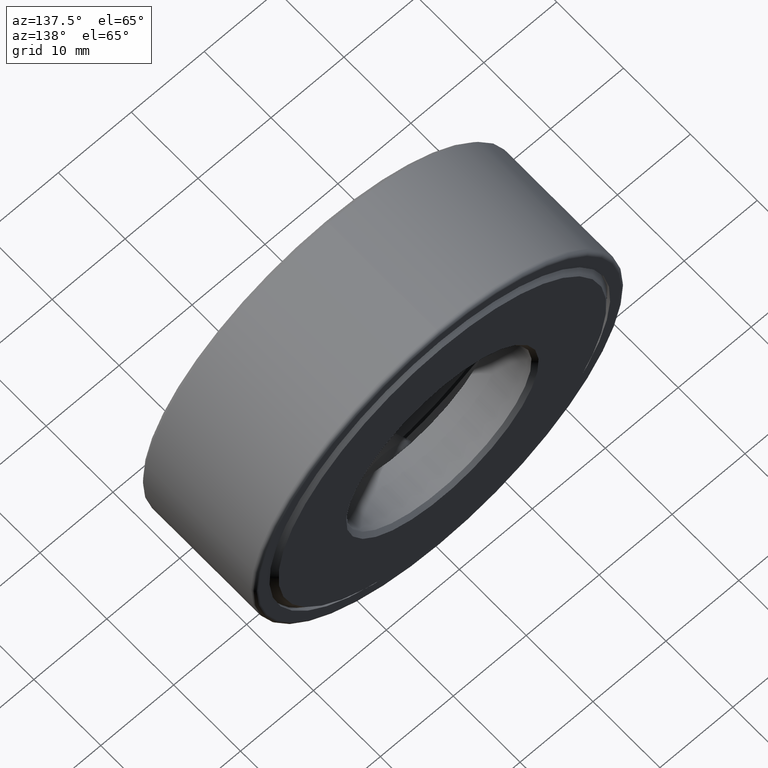
[diagram: clean part render]
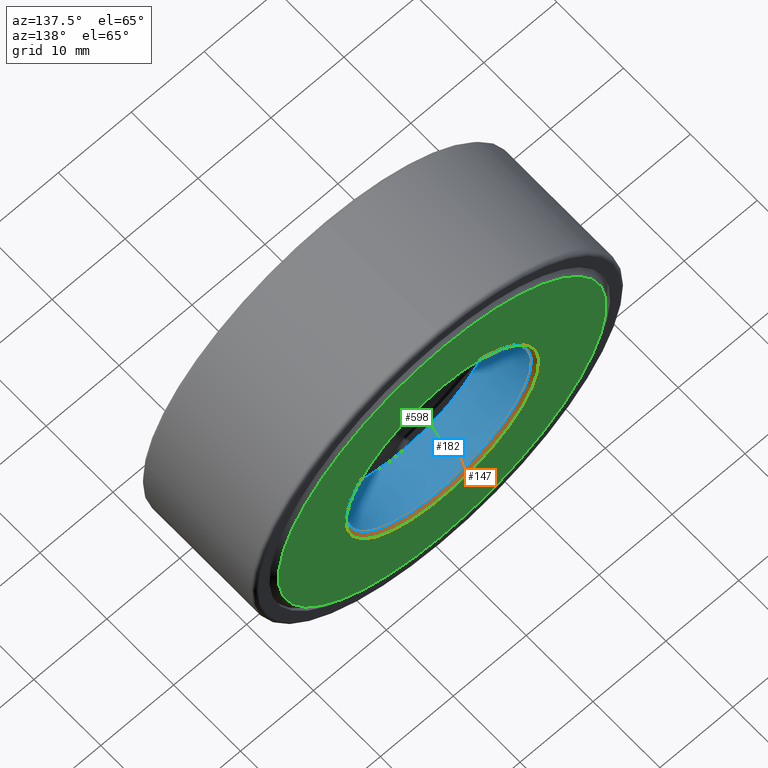
[diagram: same view with three faces highlighted in distinct colors, each labeled with its STEP entity id]
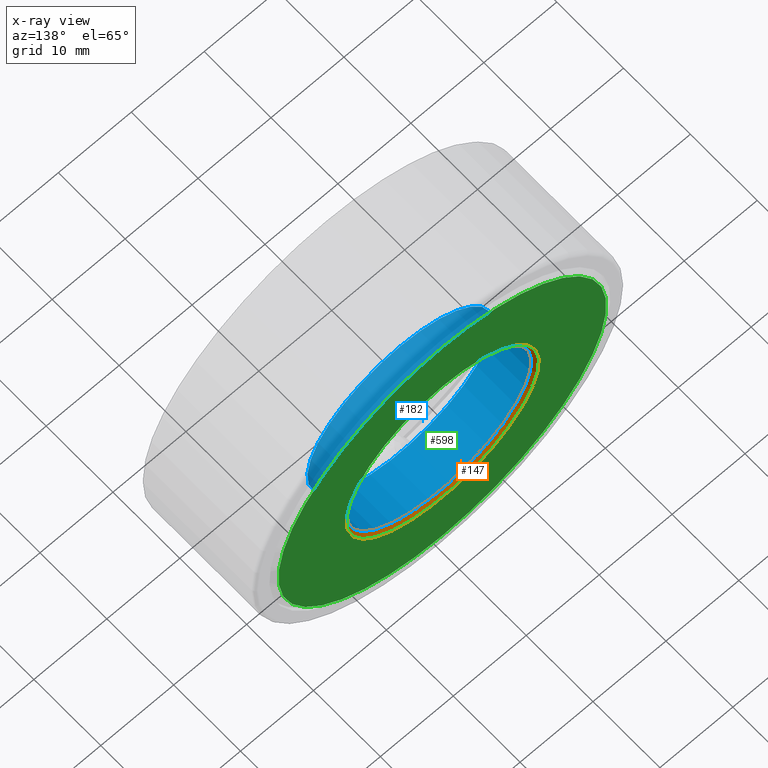
[diagram: x-ray of the same camera — body ghosted, the three highlighted faces saturated]
A machine part, auxiliary view with three faces highlighted in distinct colors.
The next image is the same camera in x-ray (body ghosted, the three faces saturated) — at least one of them is partly hidden behind the body in this view.
Their STEP definitions:

[orange] entity #147 — the highlighted conical surface has half-angle 45 deg.
#19 = DIRECTION ( 'NONE',  ( -0.0000000000000000000, 1.000000000000000000, -0.0000000000000000000 ) ) ;
#51 = VERTEX_POINT ( 'NONE', #305 ) ;
#60 = AXIS2_PLACEMENT_3D ( 'NONE', #514, #197, #295 ) ;
#81 = AXIS2_PLACEMENT_3D ( 'NONE', #462, #556, #141 ) ;
#98 = VERTEX_POINT ( 'NONE', #443 ) ;
#128 = EDGE_CURVE ( 'NONE', #98, #98, #387, .T. ) ;
#141 = DIRECTION ( 'NONE',  ( 0.0000000000000000000, 0.0000000000000000000, 1.000000000000000000 ) ) ;
#147 = ADVANCED_FACE ( 'NONE', ( #509, #592 ), #380, .F. ) ;
#196 = ORIENTED_EDGE ( 'NONE', *, *, #389, .F. ) ;
#197 = DIRECTION ( 'NONE',  ( -0.0000000000000000000, 1.000000000000000000, -0.0000000000000000000 ) ) ;
#200 = CIRCLE ( 'NONE', #419, 0.5000000000000001100 ) ;
#295 = DIRECTION ( 'NONE',  ( 0.0000000000000000000, 0.0000000000000000000, 1.000000000000000000 ) ) ;
#302 = CARTESIAN_POINT ( 'NONE',  ( 0.0000000000000000000, 0.6674999999999998700, 0.0000000000000000000 ) ) ;
#305 = CARTESIAN_POINT ( 'NONE',  ( 0.0000000000000000000, 0.6674999999999998700, 0.5000000000000001100 ) ) ;
#313 = EDGE_LOOP ( 'NONE', ( #491 ) ) ;
#349 = DIRECTION ( 'NONE',  ( 0.0000000000000000000, 0.0000000000000000000, 1.000000000000000000 ) ) ;
#380 = CONICAL_SURFACE ( 'NONE', #60, 0.5000000000000001100, 0.7853981633974466100 ) ;
#387 = CIRCLE ( 'NONE', #81, 0.5200000000000000200 ) ;
#389 = EDGE_CURVE ( 'NONE', #51, #51, #200, .T. ) ;
#419 = AXIS2_PLACEMENT_3D ( 'NONE', #302, #19, #349 ) ;
#443 = CARTESIAN_POINT ( 'NONE',  ( 0.0000000000000000000, 0.6875000000000000000, 0.5200000000000000200 ) ) ;
#461 = EDGE_LOOP ( 'NONE', ( #196 ) ) ;
#462 = CARTESIAN_POINT ( 'NONE',  ( 0.0000000000000000000, 0.6875000000000000000, 0.0000000000000000000 ) ) ;
#491 = ORIENTED_EDGE ( 'NONE', *, *, #128, .T. ) ;
#509 = FACE_OUTER_BOUND ( 'NONE', #313, .T. ) ;
#514 = CARTESIAN_POINT ( 'NONE',  ( 0.0000000000000000000, 0.6674999999999998700, 0.0000000000000000000 ) ) ;
#556 = DIRECTION ( 'NONE',  ( -0.0000000000000000000, 1.000000000000000000, -0.0000000000000000000 ) ) ;
#592 = FACE_BOUND ( 'NONE', #461, .T. ) ;

[blue] entity #182 — the highlighted cylindrical surface (bore or boss wall) has radius 12.7 mm, axis along (-0, 1, -0).
#19 = DIRECTION ( 'NONE',  ( -0.0000000000000000000, 1.000000000000000000, -0.0000000000000000000 ) ) ;
#26 = FACE_OUTER_BOUND ( 'NONE', #378, .T. ) ;
#48 = ORIENTED_EDGE ( 'NONE', *, *, #389, .T. ) ;
#51 = VERTEX_POINT ( 'NONE', #305 ) ;
#66 = EDGE_CURVE ( 'NONE', #429, #429, #516, .T. ) ;
#90 = DIRECTION ( 'NONE',  ( -0.0000000000000000000, 1.000000000000000000, -0.0000000000000000000 ) ) ;
#143 = CARTESIAN_POINT ( 'NONE',  ( 0.0000000000000000000, 0.4374999999999998900, 0.0000000000000000000 ) ) ;
#160 = AXIS2_PLACEMENT_3D ( 'NONE', #143, #90, #551 ) ;
#170 = FACE_OUTER_BOUND ( 'NONE', #390, .T. ) ;
#182 = ADVANCED_FACE ( 'NONE', ( #170, #26 ), #290, .F. ) ;
#189 = DIRECTION ( 'NONE',  ( 0.0000000000000000000, 0.0000000000000000000, 1.000000000000000000 ) ) ;
#200 = CIRCLE ( 'NONE', #419, 0.5000000000000001100 ) ;
#288 = CARTESIAN_POINT ( 'NONE',  ( 0.0000000000000000000, 0.0000000000000000000, 0.0000000000000000000 ) ) ;
#290 = CYLINDRICAL_SURFACE ( 'NONE', #294, 0.5000000000000001100 ) ;
#294 = AXIS2_PLACEMENT_3D ( 'NONE', #288, #388, #189 ) ;
#302 = CARTESIAN_POINT ( 'NONE',  ( 0.0000000000000000000, 0.6674999999999998700, 0.0000000000000000000 ) ) ;
#305 = CARTESIAN_POINT ( 'NONE',  ( 0.0000000000000000000, 0.6674999999999998700, 0.5000000000000001100 ) ) ;
#349 = DIRECTION ( 'NONE',  ( 0.0000000000000000000, 0.0000000000000000000, 1.000000000000000000 ) ) ;
#378 = EDGE_LOOP ( 'NONE', ( #597 ) ) ;
#388 = DIRECTION ( 'NONE',  ( -0.0000000000000000000, 1.000000000000000000, -0.0000000000000000000 ) ) ;
#389 = EDGE_CURVE ( 'NONE', #51, #51, #200, .T. ) ;
#390 = EDGE_LOOP ( 'NONE', ( #48 ) ) ;
#419 = AXIS2_PLACEMENT_3D ( 'NONE', #302, #19, #349 ) ;
#429 = VERTEX_POINT ( 'NONE', #492 ) ;
#492 = CARTESIAN_POINT ( 'NONE',  ( 0.0000000000000000000, 0.4374999999999998900, 0.5000000000000001100 ) ) ;
#516 = CIRCLE ( 'NONE', #160, 0.5000000000000001100 ) ;
#551 = DIRECTION ( 'NONE',  ( 0.0000000000000000000, 0.0000000000000000000, 1.000000000000000000 ) ) ;
#597 = ORIENTED_EDGE ( 'NONE', *, *, #66, .F. ) ;

[green] entity #598 — the highlighted planar face has unit normal (-0, 1, 0).
#4 = FACE_BOUND ( 'NONE', #498, .T. ) ;
#21 = EDGE_LOOP ( 'NONE', ( #506 ) ) ;
#23 = CARTESIAN_POINT ( 'NONE',  ( 0.0000000000000000000, 0.6875000000000000000, 0.0000000000000000000 ) ) ;
#81 = AXIS2_PLACEMENT_3D ( 'NONE', #462, #556, #141 ) ;
#98 = VERTEX_POINT ( 'NONE', #443 ) ;
#113 = AXIS2_PLACEMENT_3D ( 'NONE', #311, #215, #211 ) ;
#124 = PLANE ( 'NONE',  #113 ) ;
#128 = EDGE_CURVE ( 'NONE', #98, #98, #387, .T. ) ;
#141 = DIRECTION ( 'NONE',  ( 0.0000000000000000000, 0.0000000000000000000, 1.000000000000000000 ) ) ;
#211 = DIRECTION ( 'NONE',  ( 0.0000000000000000000, 0.0000000000000000000, 1.000000000000000000 ) ) ;
#215 = DIRECTION ( 'NONE',  ( -0.0000000000000000000, 1.000000000000000000, 0.0000000000000000000 ) ) ;
#242 = VERTEX_POINT ( 'NONE', #276 ) ;
#276 = CARTESIAN_POINT ( 'NONE',  ( 0.0000000000000000000, 0.6875000000000000000, 0.8849999999999996800 ) ) ;
#310 = FACE_OUTER_BOUND ( 'NONE', #21, .T. ) ;
#311 = CARTESIAN_POINT ( 'NONE',  ( 0.0000000000000000000, 0.6875000000000000000, 0.0000000000000000000 ) ) ;
#330 = ORIENTED_EDGE ( 'NONE', *, *, #128, .F. ) ;
#387 = CIRCLE ( 'NONE', #81, 0.5200000000000000200 ) ;
#403 = EDGE_CURVE ( 'NONE', #242, #242, #586, .T. ) ;
#443 = CARTESIAN_POINT ( 'NONE',  ( 0.0000000000000000000, 0.6875000000000000000, 0.5200000000000000200 ) ) ;
#462 = CARTESIAN_POINT ( 'NONE',  ( 0.0000000000000000000, 0.6875000000000000000, 0.0000000000000000000 ) ) ;
#484 = DIRECTION ( 'NONE',  ( 0.0000000000000000000, 0.0000000000000000000, 1.000000000000000000 ) ) ;
#498 = EDGE_LOOP ( 'NONE', ( #330 ) ) ;
#506 = ORIENTED_EDGE ( 'NONE', *, *, #403, .T. ) ;
#556 = DIRECTION ( 'NONE',  ( -0.0000000000000000000, 1.000000000000000000, -0.0000000000000000000 ) ) ;
#584 = DIRECTION ( 'NONE',  ( -0.0000000000000000000, 1.000000000000000000, -0.0000000000000000000 ) ) ;
#586 = CIRCLE ( 'NONE', #604, 0.8849999999999996800 ) ;
#598 = ADVANCED_FACE ( 'NONE', ( #310, #4 ), #124, .T. ) ;
#604 = AXIS2_PLACEMENT_3D ( 'NONE', #23, #584, #484 ) ;